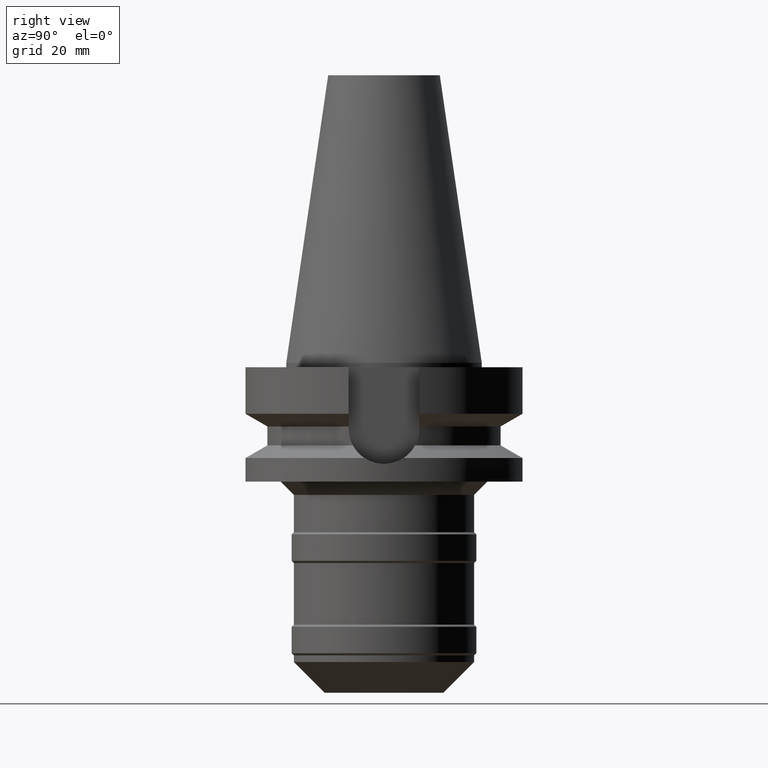
[diagram: clean part render]
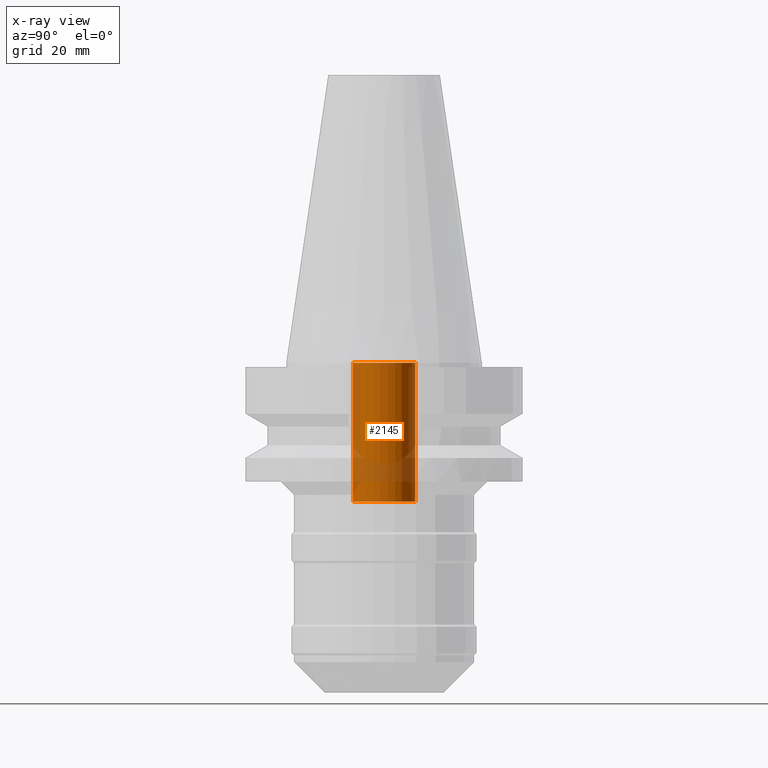
[diagram: x-ray — body ghosted, one internal face saturated and labeled with its STEP entity id]
A machine part, right view, then the same camera in x-ray: the body is ghosted and one INTERNAL B-rep face — a face not visible from any outside direction — is saturated and labeled: STEP entity #2145.
In plain terms, the highlighted cylindrical surface (edge-blend (fillet) strip) has radius 7.1 mm, axis along (0, 0, -1).
Its self-contained STEP definition (entity closure, byte-faithful):
#1028=CARTESIAN_POINT('',(0.E0,2.111536011090E-14,-3.16E1));
#1029=DIRECTION('',(0.E0,0.E0,-1.E0));
#1030=DIRECTION('',(0.E0,1.E0,0.E0));
#1031=AXIS2_PLACEMENT_3D('',#1028,#1029,#1030);
#1052=DIRECTION('',(0.E0,0.E0,1.E0));
#1053=VECTOR('',#1052,3.16E1);
#1054=CARTESIAN_POINT('',(0.E0,-7.1E0,-3.16E1));
#1055=LINE('',#1054,#1053);
#1067=DIRECTION('',(0.E0,0.E0,1.E0));
#1068=VECTOR('',#1067,3.16E1);
#1069=CARTESIAN_POINT('',(0.E0,7.1E0,-3.16E1));
#1070=LINE('',#1069,#1068);
#1081=CARTESIAN_POINT('',(0.E0,2.111536011090E-14,-5.684341886081E-14));
#1082=DIRECTION('',(0.E0,0.E0,1.E0));
#1083=DIRECTION('',(0.E0,-1.E0,0.E0));
#1084=AXIS2_PLACEMENT_3D('',#1081,#1082,#1083);
#1158=CARTESIAN_POINT('',(0.E0,7.1E0,-5.684341886081E-14));
#1159=VERTEX_POINT('',#1158);
#1160=CARTESIAN_POINT('',(0.E0,-7.1E0,-5.684341886081E-14));
#1161=VERTEX_POINT('',#1160);
#1162=CARTESIAN_POINT('',(0.E0,7.1E0,-3.16E1));
#1163=VERTEX_POINT('',#1162);
#1164=CARTESIAN_POINT('',(0.E0,-7.1E0,-3.16E1));
#1165=VERTEX_POINT('',#1164);
#2133=CARTESIAN_POINT('',(0.E0,2.111536011090E-14,7.242E1));
#2134=DIRECTION('',(0.E0,0.E0,-1.E0));
#2135=DIRECTION('',(0.E0,-1.E0,0.E0));
#2136=AXIS2_PLACEMENT_3D('',#2133,#2134,#2135);
#2137=CYLINDRICAL_SURFACE('',#2136,7.1E0);
#2138=ORIENTED_EDGE('',*,*,#2123,.T.);
#2140=ORIENTED_EDGE('',*,*,#2139,.F.);
#2141=ORIENTED_EDGE('',*,*,#2126,.F.);
#2142=ORIENTED_EDGE('',*,*,#2109,.F.);
#2143=EDGE_LOOP('',(#2138,#2140,#2141,#2142));
#2144=FACE_OUTER_BOUND('',#2143,.F.);
#1032=CIRCLE('',#1031,7.1E0);
#1085=CIRCLE('',#1084,7.1E0);
#2109=EDGE_CURVE('',#1163,#1165,#1032,.T.);
#2123=EDGE_CURVE('',#1163,#1159,#1070,.T.);
#2126=EDGE_CURVE('',#1165,#1161,#1055,.T.);
#2139=EDGE_CURVE('',#1161,#1159,#1085,.T.);
#2145=ADVANCED_FACE('',(#2144),#2137,.F.);